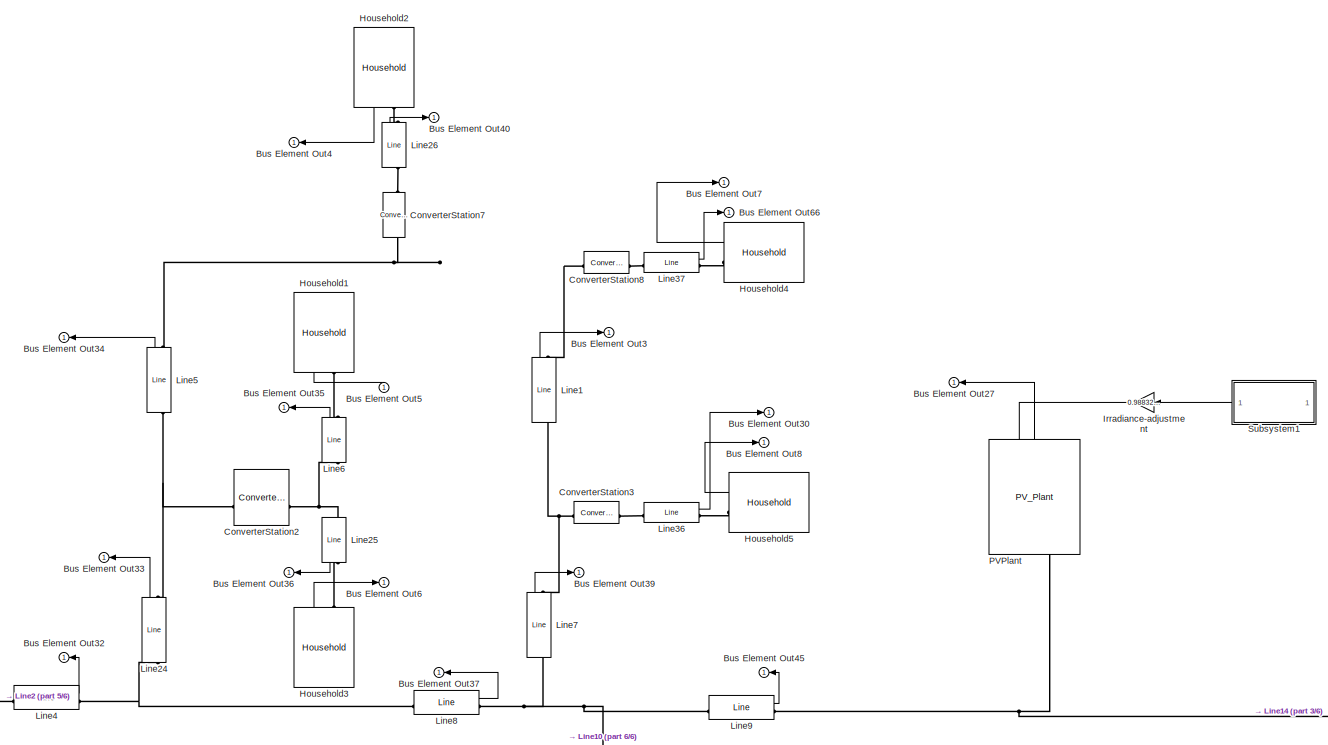
[diagram: root canvas - part 1/6, top center region]
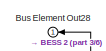
[diagram: root canvas - part 2/6, top right region]
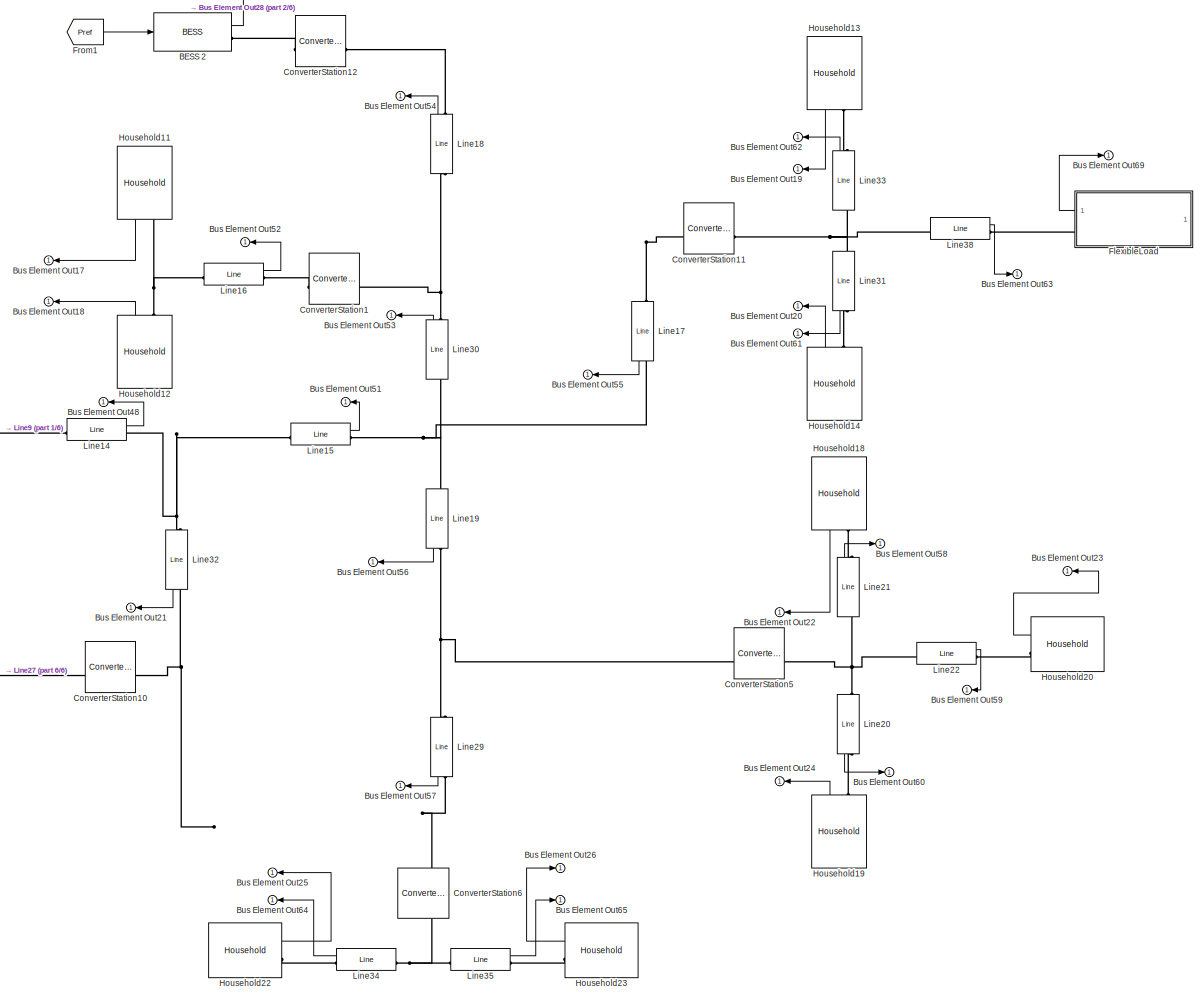
[diagram: root canvas - part 3/6, right side, full height]
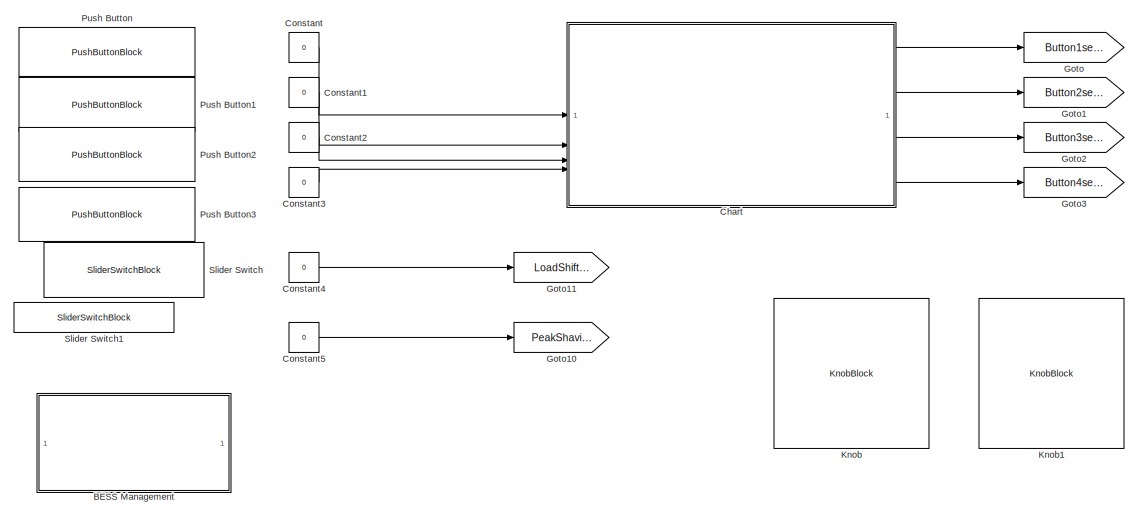
[diagram: root canvas - part 4/6, middle left region]
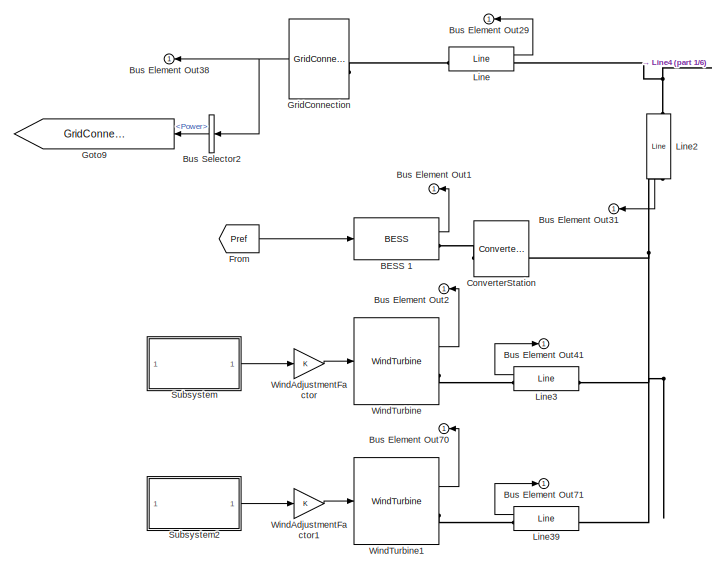
[diagram: root canvas - part 5/6, bottom center region]
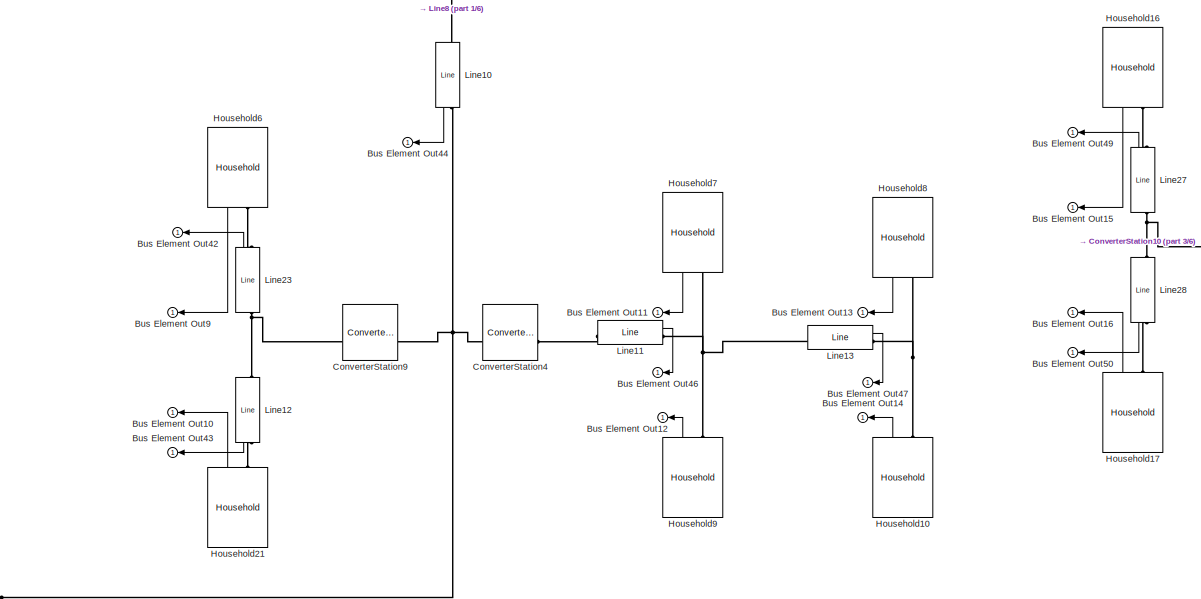
[diagram: root canvas - part 6/6, bottom center region]
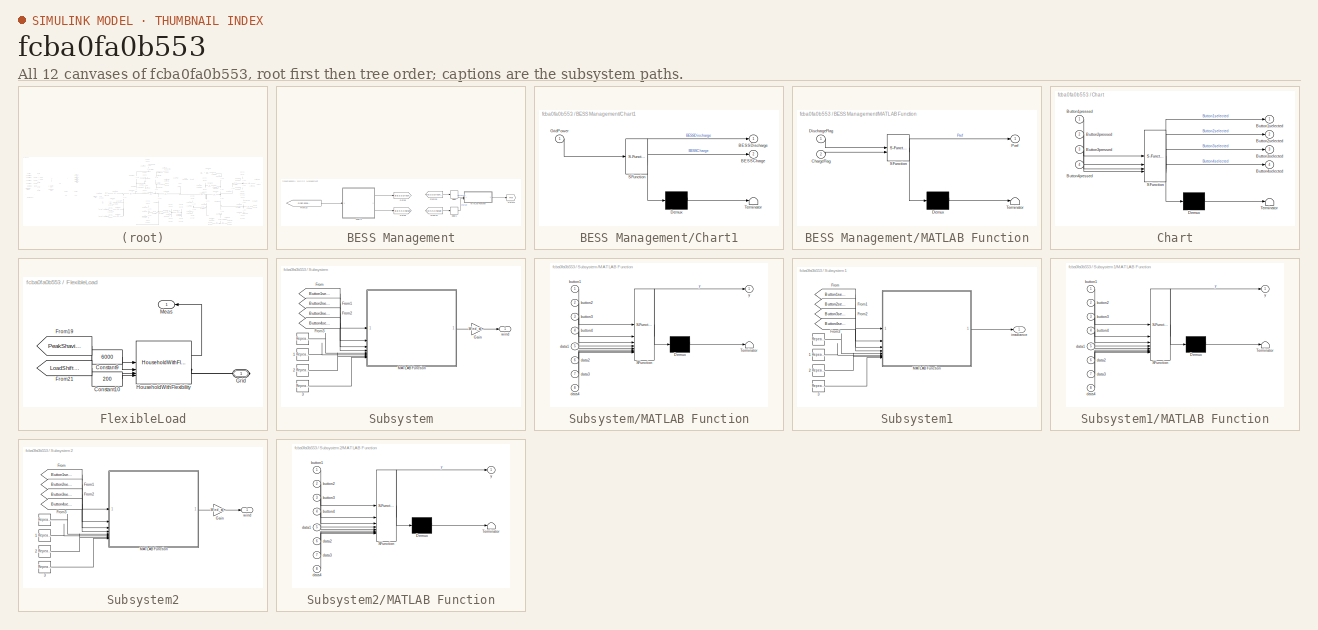
[diagram: thumbnail index - all 12 canvases of the model, root first then tree order]
MODEL slx_fcba0fa0b553
KIND model
CONFIG AbsTol = auto
CONFIG EnableMultiTasking = off
CONFIG FixedStep = auto
CONFIG MaxStep = auto
CONFIG MinStep = auto
CONFIG RelTol = 1e-3
CONFIG SampleTimeConstraint = Unconstrained
CONFIG SolverName = VariableStepAuto
CONFIG StartTime = 0.0
CONFIG StopTime = 48
BLOCK [Reference] BESS 1  REF=DC_GRIDSIM_LIB/BESS
  SourceBlock = DC_GRIDSIM_LIB/BESS
BLOCK [Reference] BESS 2  REF=DC_GRIDSIM_LIB/BESS
  SourceBlock = DC_GRIDSIM_LIB/BESS
BLOCK [SubSystem] BESS Management
BLOCK [SubSystem] BESS Management/Chart1
  ErrorFcn = Stateflow.Translate.translate
  PermitHierarchicalResolution = ExplicitOnly
  SFBlockType = Chart
  TreatAsAtomicUnit = on
BLOCK [Demux] BESS Management/Chart1/ Demux 
  Outputs = 1
BLOCK [S-Function] BESS Management/Chart1/ SFunction 
  EnableBusSupport = on
  FunctionName = sf_sfun
  Parameters = LowLoadP,PeakShP
  PortCounts = [1 3]
  SFcnIsStateOwnerBlock = off
  SFunctionDeploymentMode = off
  Tag = Stateflow S-Function 3
BLOCK [Terminator] BESS Management/Chart1/ Terminator 
BLOCK [Outport] BESS Management/Chart1/BESSCharge
  Port = 2
BLOCK [Outport] BESS Management/Chart1/BESSDischarge
BLOCK [Inport] BESS Management/Chart1/GridPower
BLOCK [Delay] BESS Management/Delay
  DelayLength = 1
  InputPortMap = u0
BLOCK [Delay] BESS Management/Delay1
  DelayLength = 1
  InputPortMap = u0
BLOCK [From] BESS Management/From18
  GotoTag = GridConnection_Power
  TagVisibility = global
BLOCK [From] BESS Management/From20
  GotoTag = BESSDischarge
  TagVisibility = global
BLOCK [From] BESS Management/From22
  GotoTag = BESSCharge
  TagVisibility = global
BLOCK [Goto] BESS Management/Goto12
  GotoTag = Pref
  TagVisibility = global
BLOCK [Goto] BESS Management/Goto6
  GotoTag = BESSDischarge
  TagVisibility = global
BLOCK [Goto] BESS Management/Goto8
  GotoTag = BESSCharge
  TagVisibility = global
BLOCK [SubSystem] BESS Management/MATLAB Function
  ErrorFcn = Stateflow.Translate.translate
  LibrarySourceBlock = simulink/User-Defined\nFunctions/MATLAB Function
  PermitHierarchicalResolution = ExplicitOnly
  SFBlockType = MATLAB Function
  TreatAsAtomicUnit = on
BLOCK [Demux] BESS Management/MATLAB Function/ Demux 
  Outputs = 1
BLOCK [S-Function] BESS Management/MATLAB Function/ SFunction 
  EnableBusSupport = on
  FunctionName = sf_sfun
  PortCounts = [2 2]
  SFcnIsStateOwnerBlock = off
  SFunctionDeploymentMode = off
  Tag = Stateflow S-Function 1
BLOCK [Terminator] BESS Management/MATLAB Function/ Terminator 
BLOCK [Inport] BESS Management/MATLAB Function/ChargeFlag
  Port = 2
BLOCK [Inport] BESS Management/MATLAB Function/DischargeFlag
BLOCK [Outport] BESS Management/MATLAB Function/Pref
BLOCK [Outport] Bus Element Out1
  NameLocation = top
BLOCK [Outport] Bus Element Out10
  NameLocation = top
BLOCK [Outport] Bus Element Out11
  NameLocation = top
BLOCK [Outport] Bus Element Out12
  NameLocation = top
BLOCK [Outport] Bus Element Out13
  NameLocation = top
BLOCK [Outport] Bus Element Out14
  NameLocation = top
BLOCK [Outport] Bus Element Out15
  NameLocation = top
BLOCK [Outport] Bus Element Out16
  NameLocation = top
BLOCK [Outport] Bus Element Out17
  NameLocation = top
BLOCK [Outport] Bus Element Out18
  NameLocation = top
BLOCK [Outport] Bus Element Out19
  NameLocation = top
BLOCK [Outport] Bus Element Out2
  NameLocation = top
BLOCK [Outport] Bus Element Out20
  NameLocation = top
BLOCK [Outport] Bus Element Out21
  NameLocation = top
BLOCK [Outport] Bus Element Out22
  NameLocation = top
BLOCK [Outport] Bus Element Out23
  NameLocation = top
BLOCK [Outport] Bus Element Out24
  NameLocation = top
BLOCK [Outport] Bus Element Out25
  NameLocation = top
BLOCK [Outport] Bus Element Out26
BLOCK [Outport] Bus Element Out27
  NameLocation = top
BLOCK [Outport] Bus Element Out28
  NameLocation = top
BLOCK [Outport] Bus Element Out29
  NameLocation = top
BLOCK [Outport] Bus Element Out3
BLOCK [Outport] Bus Element Out30
BLOCK [Outport] Bus Element Out31
  NameLocation = top
BLOCK [Outport] Bus Element Out32
  NameLocation = top
BLOCK [Outport] Bus Element Out33
  NameLocation = top
BLOCK [Outport] Bus Element Out34
  NameLocation = top
BLOCK [Outport] Bus Element Out35
  NameLocation = top
BLOCK [Outport] Bus Element Out36
  NameLocation = top
BLOCK [Outport] Bus Element Out37
  NameLocation = top
BLOCK [Outport] Bus Element Out38
  NameLocation = top
BLOCK [Outport] Bus Element Out39
BLOCK [Outport] Bus Element Out4
  NameLocation = top
BLOCK [Outport] Bus Element Out40
BLOCK [Outport] Bus Element Out41
BLOCK [Outport] Bus Element Out42
  NameLocation = top
BLOCK [Outport] Bus Element Out43
  NameLocation = top
BLOCK [Outport] Bus Element Out44
  NameLocation = top
BLOCK [Outport] Bus Element Out45
  NameLocation = top
BLOCK [Outport] Bus Element Out46
  NameLocation = top
BLOCK [Outport] Bus Element Out47
  NameLocation = top
BLOCK [Outport] Bus Element Out48
  NameLocation = top
BLOCK [Outport] Bus Element Out49
  NameLocation = top
BLOCK [Outport] Bus Element Out5
BLOCK [Outport] Bus Element Out50
  NameLocation = top
BLOCK [Outport] Bus Element Out51
  NameLocation = top
BLOCK [Outport] Bus Element Out52
  NameLocation = top
BLOCK [Outport] Bus Element Out53
  NameLocation = top
BLOCK [Outport] Bus Element Out54
  NameLocation = top
BLOCK [Outport] Bus Element Out55
  NameLocation = top
BLOCK [Outport] Bus Element Out56
  NameLocation = top
BLOCK [Outport] Bus Element Out57
  NameLocation = top
BLOCK [Outport] Bus Element Out58
BLOCK [Outport] Bus Element Out59
  NameLocation = top
BLOCK [Outport] Bus Element Out6
BLOCK [Outport] Bus Element Out60
BLOCK [Outport] Bus Element Out61
  NameLocation = top
BLOCK [Outport] Bus Element Out62
  NameLocation = top
BLOCK [Outport] Bus Element Out63
BLOCK [Outport] Bus Element Out64
  NameLocation = top
BLOCK [Outport] Bus Element Out65
BLOCK [Outport] Bus Element Out66
BLOCK [Outport] Bus Element Out69
BLOCK [Outport] Bus Element Out7
BLOCK [Outport] Bus Element Out70
  NameLocation = top
BLOCK [Outport] Bus Element Out71
BLOCK [Outport] Bus Element Out8
BLOCK [Outport] Bus Element Out9
  NameLocation = top
BLOCK [BusSelector] Bus Selector2
  NameLocation = top
  OutputSignals = Power
BLOCK [SubSystem] Chart
  ErrorFcn = Stateflow.Translate.translate
  PermitHierarchicalResolution = ExplicitOnly
  SFBlockType = Chart
  TreatAsAtomicUnit = on
BLOCK [Outport] Chart/ Button1selected
BLOCK [Outport] Chart/ Button2selected
  Port = 2
BLOCK [Outport] Chart/ Button3selected
  Port = 3
BLOCK [Outport] Chart/ Button4selected
  Port = 4
BLOCK [Demux] Chart/ Demux 
  Outputs = 1
BLOCK [S-Function] Chart/ SFunction 
  EnableBusSupport = on
  FunctionName = sf_sfun
  PortCounts = [4 5]
  SFcnIsStateOwnerBlock = off
  SFunctionDeploymentMode = off
  Tag = Stateflow S-Function 4
BLOCK [Terminator] Chart/ Terminator 
BLOCK [Inport] Chart/Button1pressed
BLOCK [Inport] Chart/Button2pressed
  Port = 2
BLOCK [Inport] Chart/Button3pressed
  Port = 3
BLOCK [Inport] Chart/Button4pressed
  Port = 4
BLOCK [Constant] Constant
  OutDataTypeStr = boolean
  Value = 0
BLOCK [Constant] Constant1
  OutDataTypeStr = boolean
  Value = 0
BLOCK [Constant] Constant2
  OutDataTypeStr = boolean
  Value = 0
BLOCK [Constant] Constant3
  OutDataTypeStr = boolean
  Value = 0
BLOCK [Constant] Constant4
  Value = 0
BLOCK [Constant] Constant5
  Value = 0
BLOCK [Reference] ConverterStation  REF=DC_GRIDSIM_LIB/ConverterStation
  SourceBlock = DC_GRIDSIM_LIB/ConverterStation
BLOCK [Reference] ConverterStation1  REF=DC_GRIDSIM_LIB/ConverterStation
  SourceBlock = DC_GRIDSIM_LIB/ConverterStation
BLOCK [Reference] ConverterStation10  REF=DC_GRIDSIM_LIB/ConverterStation
  SourceBlock = DC_GRIDSIM_LIB/ConverterStation
BLOCK [Reference] ConverterStation11  REF=DC_GRIDSIM_LIB/ConverterStation
  NameLocation = top
  SourceBlock = DC_GRIDSIM_LIB/ConverterStation
BLOCK [Reference] ConverterStation12  REF=DC_GRIDSIM_LIB/ConverterStation
  SourceBlock = DC_GRIDSIM_LIB/ConverterStation
BLOCK [Reference] ConverterStation2  REF=DC_GRIDSIM_LIB/ConverterStation
  NameLocation = top
  SourceBlock = DC_GRIDSIM_LIB/ConverterStation
BLOCK [Reference] ConverterStation3  REF=DC_GRIDSIM_LIB/ConverterStation
  NameLocation = top
  SourceBlock = DC_GRIDSIM_LIB/ConverterStation
BLOCK [Reference] ConverterStation4  REF=DC_GRIDSIM_LIB/ConverterStation
  NameLocation = top
  SourceBlock = DC_GRIDSIM_LIB/ConverterStation
BLOCK [Reference] ConverterStation5  REF=DC_GRIDSIM_LIB/ConverterStation
  NameLocation = top
  SourceBlock = DC_GRIDSIM_LIB/ConverterStation
BLOCK [Reference] ConverterStation6  REF=DC_GRIDSIM_LIB/ConverterStation
  NameLocation = right
  SourceBlock = DC_GRIDSIM_LIB/ConverterStation
BLOCK [Reference] ConverterStation7  REF=DC_GRIDSIM_LIB/ConverterStation
  NameLocation = left
  SourceBlock = DC_GRIDSIM_LIB/ConverterStation
BLOCK [Reference] ConverterStation8  REF=DC_GRIDSIM_LIB/ConverterStation
  NameLocation = top
  SourceBlock = DC_GRIDSIM_LIB/ConverterStation
BLOCK [Reference] ConverterStation9  REF=DC_GRIDSIM_LIB/ConverterStation
  SourceBlock = DC_GRIDSIM_LIB/ConverterStation
BLOCK [SubSystem] FlexibleLoad
  NameLocation = top
BLOCK [Constant] FlexibleLoad/Constant10
  Value = 200
BLOCK [Constant] FlexibleLoad/Constant9
  Value = 6000
BLOCK [From] FlexibleLoad/From19
  GotoTag = PeakShaving
  TagVisibility = global
BLOCK [From] FlexibleLoad/From21
  GotoTag = LoadShifting
  TagVisibility = global
BLOCK [PMIOPort] FlexibleLoad/Grid
  Side = Right
BLOCK [Reference] FlexibleLoad/HouseholdWithFlexibility  REF=DC_GRIDSIM_LIB/HouseholdWithFlexibility
  SourceBlock = DC_GRIDSIM_LIB/HouseholdWithFlexibility
BLOCK [Outport] FlexibleLoad/Meas
BLOCK [From] From
  GotoTag = Pref
  TagVisibility = global
BLOCK [From] From1
  GotoTag = Pref
  TagVisibility = global
BLOCK [Goto] Goto
  GotoTag = Button1selected
  TagVisibility = global
BLOCK [Goto] Goto1
  GotoTag = Button2selected
  TagVisibility = global
BLOCK [Goto] Goto10
  GotoTag = PeakShaving
  TagVisibility = global
BLOCK [Goto] Goto11
  GotoTag = LoadShifting
  TagVisibility = global
BLOCK [Goto] Goto2
  GotoTag = Button3selected
  TagVisibility = global
BLOCK [Goto] Goto3
  GotoTag = Button4selected
  TagVisibility = global
BLOCK [Goto] Goto9
  GotoTag = GridConnection_Power
  NameLocation = top
  TagVisibility = global
BLOCK [Reference] GridConnection  REF=DC_GRIDSIM_LIB/GridConnection
  SourceBlock = DC_GRIDSIM_LIB/GridConnection
BLOCK [Reference] Household1  REF=DC_GRIDSIM_LIB/Household
  NameLocation = left
  SourceBlock = DC_GRIDSIM_LIB/Household
BLOCK [Reference] Household10  REF=DC_GRIDSIM_LIB/Household
  NameLocation = right
  SourceBlock = DC_GRIDSIM_LIB/Household
BLOCK [Reference] Household11  REF=DC_GRIDSIM_LIB/Household
  NameLocation = left
  SourceBlock = DC_GRIDSIM_LIB/Household
BLOCK [Reference] Household12  REF=DC_GRIDSIM_LIB/Household
  NameLocation = right
  SourceBlock = DC_GRIDSIM_LIB/Household
BLOCK [Reference] Household13  REF=DC_GRIDSIM_LIB/Household
  NameLocation = left
  SourceBlock = DC_GRIDSIM_LIB/Household
BLOCK [Reference] Household14  REF=DC_GRIDSIM_LIB/Household
  NameLocation = right
  SourceBlock = DC_GRIDSIM_LIB/Household
BLOCK [Reference] Household16  REF=DC_GRIDSIM_LIB/Household
  NameLocation = left
  SourceBlock = DC_GRIDSIM_LIB/Household
BLOCK [Reference] Household17  REF=DC_GRIDSIM_LIB/Household
  NameLocation = right
  SourceBlock = DC_GRIDSIM_LIB/Household
BLOCK [Reference] Household18  REF=DC_GRIDSIM_LIB/Household
  NameLocation = left
  SourceBlock = DC_GRIDSIM_LIB/Household
BLOCK [Reference] Household19  REF=DC_GRIDSIM_LIB/Household
  NameLocation = right
  SourceBlock = DC_GRIDSIM_LIB/Household
BLOCK [Reference] Household2  REF=DC_GRIDSIM_LIB/Household
  NameLocation = left
  SourceBlock = DC_GRIDSIM_LIB/Household
BLOCK [Reference] Household20  REF=DC_GRIDSIM_LIB/Household
  NameLocation = top
  SourceBlock = DC_GRIDSIM_LIB/Household
BLOCK [Reference] Household21  REF=DC_GRIDSIM_LIB/Household
  NameLocation = right
  SourceBlock = DC_GRIDSIM_LIB/Household
BLOCK [Reference] Household22  REF=DC_GRIDSIM_LIB/Household
  SourceBlock = DC_GRIDSIM_LIB/Household
BLOCK [Reference] Household23  REF=DC_GRIDSIM_LIB/Household
  NameLocation = top
  SourceBlock = DC_GRIDSIM_LIB/Household
BLOCK [Reference] Household3  REF=DC_GRIDSIM_LIB/Household
  NameLocation = right
  SourceBlock = DC_GRIDSIM_LIB/Household
BLOCK [Reference] Household4  REF=DC_GRIDSIM_LIB/Household
  NameLocation = top
  SourceBlock = DC_GRIDSIM_LIB/Household
BLOCK [Reference] Household5  REF=DC_GRIDSIM_LIB/Household
  NameLocation = top
  SourceBlock = DC_GRIDSIM_LIB/Household
BLOCK [Reference] Household6  REF=DC_GRIDSIM_LIB/Household
  NameLocation = left
  SourceBlock = DC_GRIDSIM_LIB/Household
BLOCK [Reference] Household7  REF=DC_GRIDSIM_LIB/Household
  NameLocation = left
  SourceBlock = DC_GRIDSIM_LIB/Household
BLOCK [Reference] Household8  REF=DC_GRIDSIM_LIB/Household
  NameLocation = left
  SourceBlock = DC_GRIDSIM_LIB/Household
BLOCK [Reference] Household9  REF=DC_GRIDSIM_LIB/Household
  NameLocation = right
  SourceBlock = DC_GRIDSIM_LIB/Household
BLOCK [Gain] Irradiance-adjustment 
  Gain = 0.9883216814160616
  NameLocation = top
BLOCK [KnobBlock] Knob
  ScaleMax = 3
  ScaleMin = 0.9
  TickInterval = 0.1
BLOCK [KnobBlock] Knob1
  ScaleMax = 3
  ScaleMin = 0.9
  TickInterval = 0.1
BLOCK [Reference] Line  REF=DC_GRIDSIM_LIB/Line
  SourceBlock = DC_GRIDSIM_LIB/Line
BLOCK [Reference] Line1  REF=DC_GRIDSIM_LIB/Line
  NameLocation = right
  SourceBlock = DC_GRIDSIM_LIB/Line
BLOCK [Reference] Line10  REF=DC_GRIDSIM_LIB/Line
  NameLocation = left
  SourceBlock = DC_GRIDSIM_LIB/Line
BLOCK [Reference] Line11  REF=DC_GRIDSIM_LIB/Line
  SourceBlock = DC_GRIDSIM_LIB/Line
BLOCK [Reference] Line12  REF=DC_GRIDSIM_LIB/Line
  NameLocation = left
  SourceBlock = DC_GRIDSIM_LIB/Line
BLOCK [Reference] Line13  REF=DC_GRIDSIM_LIB/Line
  SourceBlock = DC_GRIDSIM_LIB/Line
BLOCK [Reference] Line14  REF=DC_GRIDSIM_LIB/Line
  SourceBlock = DC_GRIDSIM_LIB/Line
BLOCK [Reference] Line15  REF=DC_GRIDSIM_LIB/Line
  SourceBlock = DC_GRIDSIM_LIB/Line
BLOCK [Reference] Line16  REF=DC_GRIDSIM_LIB/Line
  SourceBlock = DC_GRIDSIM_LIB/Line
BLOCK [Reference] Line17  REF=DC_GRIDSIM_LIB/Line
  NameLocation = left
  SourceBlock = DC_GRIDSIM_LIB/Line
BLOCK [Reference] Line18  REF=DC_GRIDSIM_LIB/Line
  NameLocation = right
  SourceBlock = DC_GRIDSIM_LIB/Line
BLOCK [Reference] Line19  REF=DC_GRIDSIM_LIB/Line
  NameLocation = left
  SourceBlock = DC_GRIDSIM_LIB/Line
BLOCK [Reference] Line2  REF=DC_GRIDSIM_LIB/Line
  NameLocation = left
  SourceBlock = DC_GRIDSIM_LIB/Line
BLOCK [Reference] Line20  REF=DC_GRIDSIM_LIB/Line
  NameLocation = left
  SourceBlock = DC_GRIDSIM_LIB/Line
BLOCK [Reference] Line21  REF=DC_GRIDSIM_LIB/Line
  NameLocation = right
  SourceBlock = DC_GRIDSIM_LIB/Line
BLOCK [Reference] Line22  REF=DC_GRIDSIM_LIB/Line
  SourceBlock = DC_GRIDSIM_LIB/Line
BLOCK [Reference] Line23  REF=DC_GRIDSIM_LIB/Line
  NameLocation = right
  SourceBlock = DC_GRIDSIM_LIB/Line
BLOCK [Reference] Line24  REF=DC_GRIDSIM_LIB/Line
  NameLocation = right
  SourceBlock = DC_GRIDSIM_LIB/Line
BLOCK [Reference] Line25  REF=DC_GRIDSIM_LIB/Line
  NameLocation = left
  SourceBlock = DC_GRIDSIM_LIB/Line
BLOCK [Reference] Line26  REF=DC_GRIDSIM_LIB/Line
  NameLocation = right
  SourceBlock = DC_GRIDSIM_LIB/Line
BLOCK [Reference] Line27  REF=DC_GRIDSIM_LIB/Line
  NameLocation = right
  SourceBlock = DC_GRIDSIM_LIB/Line
BLOCK [Reference] Line28  REF=DC_GRIDSIM_LIB/Line
  NameLocation = left
  SourceBlock = DC_GRIDSIM_LIB/Line
BLOCK [Reference] Line29  REF=DC_GRIDSIM_LIB/Line
  NameLocation = left
  SourceBlock = DC_GRIDSIM_LIB/Line
BLOCK [Reference] Line3  REF=DC_GRIDSIM_LIB/Line
  NameLocation = top
  SourceBlock = DC_GRIDSIM_LIB/Line
BLOCK [Reference] Line30  REF=DC_GRIDSIM_LIB/Line
  NameLocation = right
  SourceBlock = DC_GRIDSIM_LIB/Line
BLOCK [Reference] Line31  REF=DC_GRIDSIM_LIB/Line
  NameLocation = left
  SourceBlock = DC_GRIDSIM_LIB/Line
BLOCK [Reference] Line32  REF=DC_GRIDSIM_LIB/Line
  NameLocation = left
  SourceBlock = DC_GRIDSIM_LIB/Line
BLOCK [Reference] Line33  REF=DC_GRIDSIM_LIB/Line
  NameLocation = right
  SourceBlock = DC_GRIDSIM_LIB/Line
BLOCK [Reference] Line34  REF=DC_GRIDSIM_LIB/Line
  NameLocation = top
  SourceBlock = DC_GRIDSIM_LIB/Line
BLOCK [Reference] Line35  REF=DC_GRIDSIM_LIB/Line
  SourceBlock = DC_GRIDSIM_LIB/Line
BLOCK [Reference] Line36  REF=DC_GRIDSIM_LIB/Line
  SourceBlock = DC_GRIDSIM_LIB/Line
BLOCK [Reference] Line37  REF=DC_GRIDSIM_LIB/Line
  SourceBlock = DC_GRIDSIM_LIB/Line
BLOCK [Reference] Line38  REF=DC_GRIDSIM_LIB/Line
  SourceBlock = DC_GRIDSIM_LIB/Line
BLOCK [Reference] Line39  REF=DC_GRIDSIM_LIB/Line
  NameLocation = top
  SourceBlock = DC_GRIDSIM_LIB/Line
BLOCK [Reference] Line4  REF=DC_GRIDSIM_LIB/Line
  SourceBlock = DC_GRIDSIM_LIB/Line
BLOCK [Reference] Line5  REF=DC_GRIDSIM_LIB/Line
  NameLocation = right
  SourceBlock = DC_GRIDSIM_LIB/Line
BLOCK [Reference] Line6  REF=DC_GRIDSIM_LIB/Line
  NameLocation = right
  SourceBlock = DC_GRIDSIM_LIB/Line
BLOCK [Reference] Line7  REF=DC_GRIDSIM_LIB/Line
  NameLocation = right
  SourceBlock = DC_GRIDSIM_LIB/Line
BLOCK [Reference] Line8  REF=DC_GRIDSIM_LIB/Line
  SourceBlock = DC_GRIDSIM_LIB/Line
BLOCK [Reference] Line9  REF=DC_GRIDSIM_LIB/Line
  SourceBlock = DC_GRIDSIM_LIB/Line
BLOCK [Reference] PVPlant  REF=DC_GRIDSIM_LIB/PV_Plant
  NameLocation = left
  SourceBlock = DC_GRIDSIM_LIB/PV_Plant
BLOCK [PushButtonBlock] Push Button
  ButtonText = Button_SpringAllday
  OffValue = 0.000000
BLOCK [PushButtonBlock] Push Button1
  ButtonText = Button_SummerAllday
  OffValue = 0.000000
BLOCK [PushButtonBlock] Push Button2
  ButtonText = Button_AutumnAllday
  OffValue = 0.000000
BLOCK [PushButtonBlock] Push Button3
  ButtonText = Button_WinterAllday
  OffValue = 0.000000
BLOCK [SliderSwitchBlock] Slider Switch
  LabelPosition = Hide
BLOCK [SliderSwitchBlock] Slider Switch1
  LabelPosition = Hide
BLOCK [SubSystem] Subsystem
BLOCK [Reference] Subsystem/    REF=simulink/Sources/Repeating
Sequence
Interpolated
  NameLocation = top
  SourceBlock = simulink/Sources/Repeating\nSequence\nInterpolated
  SourceType = Repeating Sequence Interpolated
BLOCK [Reference] Subsystem/  1  REF=simulink/Sources/Repeating
Sequence
Interpolated
  NameLocation = top
  SourceBlock = simulink/Sources/Repeating\nSequence\nInterpolated
  SourceType = Repeating Sequence Interpolated
BLOCK [Reference] Subsystem/  2  REF=simulink/Sources/Repeating
Sequence
Interpolated
  NameLocation = top
  SourceBlock = simulink/Sources/Repeating\nSequence\nInterpolated
  SourceType = Repeating Sequence Interpolated
BLOCK [Reference] Subsystem/  3  REF=simulink/Sources/Repeating
Sequence
Interpolated
  NameLocation = top
  SourceBlock = simulink/Sources/Repeating\nSequence\nInterpolated
  SourceType = Repeating Sequence Interpolated
BLOCK [From] Subsystem/From
  GotoTag = Button1selected
  TagVisibility = global
BLOCK [From] Subsystem/From1
  GotoTag = Button2selected
  TagVisibility = global
BLOCK [From] Subsystem/From2
  GotoTag = Button3selected
  TagVisibility = global
BLOCK [From] Subsystem/From3
  GotoTag = Button4selected
  TagVisibility = global
BLOCK [Gain] Subsystem/Gain
  Gain = Wind_scalefactor
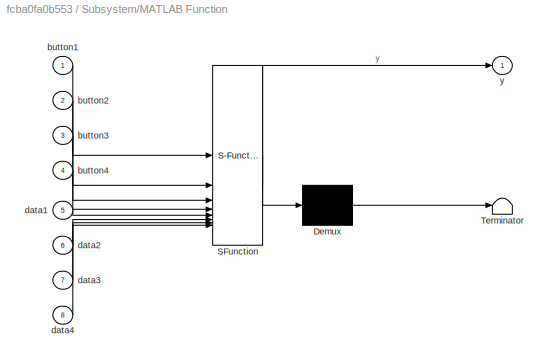
BLOCK [SubSystem] Subsystem/MATLAB Function
  ErrorFcn = Stateflow.Translate.translate
  LibrarySourceBlock = simulink/User-Defined\nFunctions/MATLAB Function
  PermitHierarchicalResolution = ExplicitOnly
  SFBlockType = MATLAB Function
  TreatAsAtomicUnit = on
BLOCK [Demux] Subsystem/MATLAB Function/ Demux 
  Outputs = 1
BLOCK [S-Function] Subsystem/MATLAB Function/ SFunction 
  EnableBusSupport = on
  FunctionName = sf_sfun
  PortCounts = [8 2]
  SFcnIsStateOwnerBlock = off
  SFunctionDeploymentMode = off
  Tag = Stateflow S-Function 2
BLOCK [Terminator] Subsystem/MATLAB Function/ Terminator 
BLOCK [Inport] Subsystem/MATLAB Function/button1
BLOCK [Inport] Subsystem/MATLAB Function/button2
  Port = 2
BLOCK [Inport] Subsystem/MATLAB Function/button3
  Port = 3
BLOCK [Inport] Subsystem/MATLAB Function/button4
  Port = 4
BLOCK [Inport] Subsystem/MATLAB Function/data1
  Port = 5
BLOCK [Inport] Subsystem/MATLAB Function/data2
  Port = 6
BLOCK [Inport] Subsystem/MATLAB Function/data3
  Port = 7
BLOCK [Inport] Subsystem/MATLAB Function/data4
  Port = 8
BLOCK [Outport] Subsystem/MATLAB Function/y
BLOCK [Outport] Subsystem/wind
BLOCK [SubSystem] Subsystem1
  NameLocation = top
BLOCK [Reference] Subsystem1/    REF=simulink/Sources/Repeating
Sequence
Interpolated
  NameLocation = top
  SourceBlock = simulink/Sources/Repeating\nSequence\nInterpolated
  SourceType = Repeating Sequence Interpolated
BLOCK [Reference] Subsystem1/  1  REF=simulink/Sources/Repeating
Sequence
Interpolated
  NameLocation = top
  SourceBlock = simulink/Sources/Repeating\nSequence\nInterpolated
  SourceType = Repeating Sequence Interpolated
BLOCK [Reference] Subsystem1/  2  REF=simulink/Sources/Repeating
Sequence
Interpolated
  NameLocation = top
  SourceBlock = simulink/Sources/Repeating\nSequence\nInterpolated
  SourceType = Repeating Sequence Interpolated
BLOCK [Reference] Subsystem1/  3  REF=simulink/Sources/Repeating
Sequence
Interpolated
  NameLocation = top
  SourceBlock = simulink/Sources/Repeating\nSequence\nInterpolated
  SourceType = Repeating Sequence Interpolated
BLOCK [From] Subsystem1/From
  GotoTag = Button1selected
  TagVisibility = global
BLOCK [From] Subsystem1/From1
  GotoTag = Button2selected
  TagVisibility = global
BLOCK [From] Subsystem1/From2
  GotoTag = Button3selected
  TagVisibility = global
BLOCK [From] Subsystem1/From3
  GotoTag = Button4selected
  TagVisibility = global
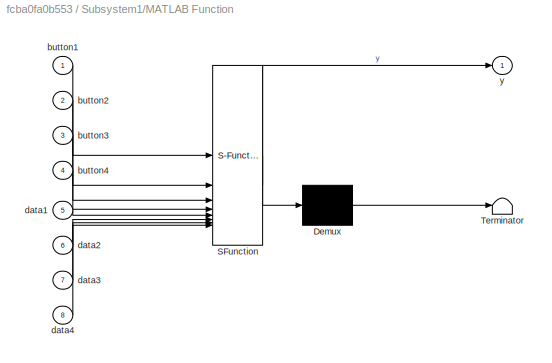
BLOCK [SubSystem] Subsystem1/MATLAB Function
  ErrorFcn = Stateflow.Translate.translate
  LibrarySourceBlock = simulink/User-Defined\nFunctions/MATLAB Function
  PermitHierarchicalResolution = ExplicitOnly
  SFBlockType = MATLAB Function
  TreatAsAtomicUnit = on
BLOCK [Demux] Subsystem1/MATLAB Function/ Demux 
  Outputs = 1
BLOCK [S-Function] Subsystem1/MATLAB Function/ SFunction 
  EnableBusSupport = on
  FunctionName = sf_sfun
  PortCounts = [8 2]
  SFcnIsStateOwnerBlock = off
  SFunctionDeploymentMode = off
  Tag = Stateflow S-Function 17
BLOCK [Terminator] Subsystem1/MATLAB Function/ Terminator 
BLOCK [Inport] Subsystem1/MATLAB Function/button1
BLOCK [Inport] Subsystem1/MATLAB Function/button2
  Port = 2
BLOCK [Inport] Subsystem1/MATLAB Function/button3
  Port = 3
BLOCK [Inport] Subsystem1/MATLAB Function/button4
  Port = 4
BLOCK [Inport] Subsystem1/MATLAB Function/data1
  Port = 5
BLOCK [Inport] Subsystem1/MATLAB Function/data2
  Port = 6
BLOCK [Inport] Subsystem1/MATLAB Function/data3
  Port = 7
BLOCK [Inport] Subsystem1/MATLAB Function/data4
  Port = 8
BLOCK [Outport] Subsystem1/MATLAB Function/y
BLOCK [Outport] Subsystem1/irradiance
BLOCK [SubSystem] Subsystem2
BLOCK [Reference] Subsystem2/    REF=simulink/Sources/Repeating
Sequence
Interpolated
  NameLocation = top
  SourceBlock = simulink/Sources/Repeating\nSequence\nInterpolated
  SourceType = Repeating Sequence Interpolated
BLOCK [Reference] Subsystem2/  1  REF=simulink/Sources/Repeating
Sequence
Interpolated
  NameLocation = top
  SourceBlock = simulink/Sources/Repeating\nSequence\nInterpolated
  SourceType = Repeating Sequence Interpolated
BLOCK [Reference] Subsystem2/  2  REF=simulink/Sources/Repeating
Sequence
Interpolated
  NameLocation = top
  SourceBlock = simulink/Sources/Repeating\nSequence\nInterpolated
  SourceType = Repeating Sequence Interpolated
BLOCK [Reference] Subsystem2/  3  REF=simulink/Sources/Repeating
Sequence
Interpolated
  NameLocation = top
  SourceBlock = simulink/Sources/Repeating\nSequence\nInterpolated
  SourceType = Repeating Sequence Interpolated
BLOCK [From] Subsystem2/From
  GotoTag = Button1selected
  TagVisibility = global
BLOCK [From] Subsystem2/From1
  GotoTag = Button2selected
  TagVisibility = global
BLOCK [From] Subsystem2/From2
  GotoTag = Button3selected
  TagVisibility = global
BLOCK [From] Subsystem2/From3
  GotoTag = Button4selected
  TagVisibility = global
BLOCK [Gain] Subsystem2/Gain
  Gain = Wind_scalefactor
BLOCK [SubSystem] Subsystem2/MATLAB Function
  ErrorFcn = Stateflow.Translate.translate
  LibrarySourceBlock = simulink/User-Defined\nFunctions/MATLAB Function
  PermitHierarchicalResolution = ExplicitOnly
  SFBlockType = MATLAB Function
  TreatAsAtomicUnit = on
BLOCK [Demux] Subsystem2/MATLAB Function/ Demux 
  Outputs = 1
BLOCK [S-Function] Subsystem2/MATLAB Function/ SFunction 
  EnableBusSupport = on
  FunctionName = sf_sfun
  PortCounts = [8 2]
  SFcnIsStateOwnerBlock = off
  SFunctionDeploymentMode = off
  Tag = Stateflow S-Function 9
BLOCK [Terminator] Subsystem2/MATLAB Function/ Terminator 
BLOCK [Inport] Subsystem2/MATLAB Function/button1
BLOCK [Inport] Subsystem2/MATLAB Function/button2
  Port = 2
BLOCK [Inport] Subsystem2/MATLAB Function/button3
  Port = 3
BLOCK [Inport] Subsystem2/MATLAB Function/button4
  Port = 4
BLOCK [Inport] Subsystem2/MATLAB Function/data1
  Port = 5
BLOCK [Inport] Subsystem2/MATLAB Function/data2
  Port = 6
BLOCK [Inport] Subsystem2/MATLAB Function/data3
  Port = 7
BLOCK [Inport] Subsystem2/MATLAB Function/data4
  Port = 8
BLOCK [Outport] Subsystem2/MATLAB Function/y
BLOCK [Outport] Subsystem2/wind
BLOCK [Gain] WindAdjustmentFactor
BLOCK [Gain] WindAdjustmentFactor1
BLOCK [Reference] WindTurbine  REF=DC_GRIDSIM_LIB/WindTurbine
  SourceBlock = DC_GRIDSIM_LIB/WindTurbine
  SourceType = SubSystem
BLOCK [Reference] WindTurbine1  REF=DC_GRIDSIM_LIB/WindTurbine
  SourceBlock = DC_GRIDSIM_LIB/WindTurbine
  SourceType = SubSystem
LINE BESS 1:1 -> Bus Element Out1:1
LINE BESS 2:1 -> Bus Element Out28:1
LINE BESS Management/Chart1:1 -> BESS Management/Goto6:1
LINE BESS Management/Chart1:2 -> BESS Management/Goto8:1
LINE BESS Management/Delay1:1 -> BESS Management/MATLAB Function:2
LINE BESS Management/Delay:1 -> BESS Management/MATLAB Function:1
LINE BESS Management/From18:1 -> BESS Management/Chart1:1
LINE BESS Management/From20:1 -> BESS Management/Delay:1
LINE BESS Management/From22:1 -> BESS Management/Delay1:1
LINE BESS Management/MATLAB Function:1 -> BESS Management/Goto12:1
LINE Bus Selector2:1 -> Goto9:1
LINE Chart:1 -> Goto:1
LINE Chart:2 -> Goto1:1
LINE Chart:3 -> Goto2:1
LINE Chart:4 -> Goto3:1
LINE Constant1:1 -> Chart:2
LINE Constant2:1 -> Chart:3
LINE Constant3:1 -> Chart:4
LINE Constant4:1 -> Goto11:1
LINE Constant5:1 -> Goto10:1
LINE Constant:1 -> Chart:1
LINE FlexibleLoad/Constant10:1 -> FlexibleLoad/HouseholdWithFlexibility:4
LINE FlexibleLoad/Constant9:1 -> FlexibleLoad/HouseholdWithFlexibility:2
LINE FlexibleLoad/From19:1 -> FlexibleLoad/HouseholdWithFlexibility:1
LINE FlexibleLoad/From21:1 -> FlexibleLoad/HouseholdWithFlexibility:3
LINE FlexibleLoad/HouseholdWithFlexibility:1 -> FlexibleLoad/Meas:1
LINE FlexibleLoad:1 -> Bus Element Out69:1
LINE From1:1 -> BESS 2:1
LINE From:1 -> BESS 1:1
NET GridConnection:1 -> Bus Element Out38:1, Bus Selector2:1
LINE Household10:1 -> Bus Element Out14:1
LINE Household11:1 -> Bus Element Out17:1
LINE Household12:1 -> Bus Element Out18:1
LINE Household13:1 -> Bus Element Out19:1
LINE Household14:1 -> Bus Element Out20:1
LINE Household16:1 -> Bus Element Out15:1
LINE Household17:1 -> Bus Element Out16:1
LINE Household18:1 -> Bus Element Out22:1
LINE Household19:1 -> Bus Element Out24:1
LINE Household1:1 -> Bus Element Out5:1
LINE Household20:1 -> Bus Element Out23:1
LINE Household21:1 -> Bus Element Out10:1
LINE Household22:1 -> Bus Element Out25:1
LINE Household23:1 -> Bus Element Out26:1
LINE Household2:1 -> Bus Element Out4:1
LINE Household3:1 -> Bus Element Out6:1
LINE Household4:1 -> Bus Element Out7:1
LINE Household5:1 -> Bus Element Out8:1
LINE Household6:1 -> Bus Element Out9:1
LINE Household7:1 -> Bus Element Out11:1
LINE Household8:1 -> Bus Element Out13:1
LINE Household9:1 -> Bus Element Out12:1
LINE Irradiance-adjustment :1 -> PVPlant:1
LINE Line10:1 -> Bus Element Out44:1
LINE Line11:1 -> Bus Element Out46:1
LINE Line12:1 -> Bus Element Out43:1
LINE Line13:1 -> Bus Element Out47:1
LINE Line14:1 -> Bus Element Out48:1
LINE Line15:1 -> Bus Element Out51:1
LINE Line16:1 -> Bus Element Out52:1
LINE Line17:1 -> Bus Element Out55:1
LINE Line18:1 -> Bus Element Out54:1
LINE Line19:1 -> Bus Element Out56:1
LINE Line1:1 -> Bus Element Out3:1
LINE Line20:1 -> Bus Element Out60:1
LINE Line21:1 -> Bus Element Out58:1
LINE Line22:1 -> Bus Element Out59:1
LINE Line23:1 -> Bus Element Out42:1
LINE Line24:1 -> Bus Element Out33:1
LINE Line25:1 -> Bus Element Out36:1
LINE Line26:1 -> Bus Element Out40:1
LINE Line27:1 -> Bus Element Out49:1
LINE Line28:1 -> Bus Element Out50:1
LINE Line29:1 -> Bus Element Out57:1
LINE Line2:1 -> Bus Element Out31:1
LINE Line30:1 -> Bus Element Out53:1
LINE Line31:1 -> Bus Element Out61:1
LINE Line32:1 -> Bus Element Out21:1
LINE Line33:1 -> Bus Element Out62:1
LINE Line34:1 -> Bus Element Out64:1
LINE Line35:1 -> Bus Element Out65:1
LINE Line36:1 -> Bus Element Out30:1
LINE Line37:1 -> Bus Element Out66:1
LINE Line38:1 -> Bus Element Out63:1
LINE Line39:1 -> Bus Element Out71:1
LINE Line3:1 -> Bus Element Out41:1
LINE Line4:1 -> Bus Element Out32:1
LINE Line5:1 -> Bus Element Out34:1
LINE Line6:1 -> Bus Element Out35:1
LINE Line7:1 -> Bus Element Out39:1
LINE Line8:1 -> Bus Element Out37:1
LINE Line9:1 -> Bus Element Out45:1
LINE Line:1 -> Bus Element Out29:1
LINE PVPlant:1 -> Bus Element Out27:1
LINE Subsystem/  1:1 -> Subsystem/MATLAB Function:6
LINE Subsystem/  2:1 -> Subsystem/MATLAB Function:7
LINE Subsystem/  3:1 -> Subsystem/MATLAB Function:8
LINE Subsystem/  :1 -> Subsystem/MATLAB Function:5
LINE Subsystem/From1:1 -> Subsystem/MATLAB Function:2
LINE Subsystem/From2:1 -> Subsystem/MATLAB Function:3
LINE Subsystem/From3:1 -> Subsystem/MATLAB Function:4
LINE Subsystem/From:1 -> Subsystem/MATLAB Function:1
LINE Subsystem/Gain:1 -> Subsystem/wind:1
LINE Subsystem/MATLAB Function:1 -> Subsystem/Gain:1
LINE Subsystem1/  1:1 -> Subsystem1/MATLAB Function:6
LINE Subsystem1/  2:1 -> Subsystem1/MATLAB Function:7
LINE Subsystem1/  3:1 -> Subsystem1/MATLAB Function:8
LINE Subsystem1/  :1 -> Subsystem1/MATLAB Function:5
LINE Subsystem1/From1:1 -> Subsystem1/MATLAB Function:2
LINE Subsystem1/From2:1 -> Subsystem1/MATLAB Function:3
LINE Subsystem1/From3:1 -> Subsystem1/MATLAB Function:4
LINE Subsystem1/From:1 -> Subsystem1/MATLAB Function:1
LINE Subsystem1/MATLAB Function:1 -> Subsystem1/irradiance:1
LINE Subsystem1:1 -> Irradiance-adjustment :1
LINE Subsystem2/  1:1 -> Subsystem2/MATLAB Function:6
LINE Subsystem2/  2:1 -> Subsystem2/MATLAB Function:7
LINE Subsystem2/  3:1 -> Subsystem2/MATLAB Function:8
LINE Subsystem2/  :1 -> Subsystem2/MATLAB Function:5
LINE Subsystem2/From1:1 -> Subsystem2/MATLAB Function:2
LINE Subsystem2/From2:1 -> Subsystem2/MATLAB Function:3
LINE Subsystem2/From3:1 -> Subsystem2/MATLAB Function:4
LINE Subsystem2/From:1 -> Subsystem2/MATLAB Function:1
LINE Subsystem2/Gain:1 -> Subsystem2/wind:1
LINE Subsystem2/MATLAB Function:1 -> Subsystem2/Gain:1
LINE Subsystem2:1 -> WindAdjustmentFactor1:1
LINE Subsystem:1 -> WindAdjustmentFactor:1
LINE WindAdjustmentFactor1:1 -> WindTurbine1:1
LINE WindAdjustmentFactor:1 -> WindTurbine:1
LINE WindTurbine1:1 -> Bus Element Out70:1
LINE WindTurbine:1 -> Bus Element Out2:1
PLINE BESS 1:RConn1 -- ConverterStation:LConn1
PLINE BESS 2:RConn1 -- ConverterStation12:LConn1
PNET net1: ConverterStation10:LConn1 -- Line27:LConn1 -- Line28:LConn1
PLINE ConverterStation10:RConn1 -- Line32:RConn1
PNET net2: ConverterStation11:LConn1 -- Line31:LConn1 -- Line33:LConn1 -- Line38:LConn1
PLINE ConverterStation11:RConn1 -- Line17:LConn1
PLINE ConverterStation12:RConn1 -- Line18:RConn1
PLINE ConverterStation1:LConn1 -- Line16:RConn1
PNET net3: ConverterStation1:RConn1 -- Line18:LConn1 -- Line30:RConn1
PNET net4: ConverterStation2:LConn1 -- Line25:LConn1 -- Line6:LConn1
PNET net5: ConverterStation2:RConn1 -- Line24:RConn1 -- Line5:LConn1
PLINE ConverterStation3:LConn1 -- Line36:LConn1
PNET net6: ConverterStation3:RConn1 -- Line1:LConn1 -- Line7:RConn1
PLINE ConverterStation4:LConn1 -- Line11:LConn1
PNET net7: ConverterStation4:RConn1 -- ConverterStation9:RConn1 -- Line10:RConn1
PNET net8: ConverterStation5:LConn1 -- Line20:LConn1 -- Line21:LConn1 -- Line22:LConn1
PNET net9: ConverterStation5:RConn1 -- Line19:RConn1 -- Line29:LConn1
PNET net10: ConverterStation6:LConn1 -- Line34:LConn1 -- Line35:LConn1
PLINE ConverterStation6:RConn1 -- Line29:RConn1
PLINE ConverterStation7:LConn1 -- Line26:LConn1
PLINE ConverterStation7:RConn1 -- Line5:RConn1
PLINE ConverterStation8:LConn1 -- Line37:LConn1
PLINE ConverterStation8:RConn1 -- Line1:RConn1
PNET net11: ConverterStation9:LConn1 -- Line12:LConn1 -- Line23:LConn1
PNET net12: ConverterStation:RConn1 -- Line2:RConn1 -- Line39:LConn1 -- Line3:LConn1
PLINE FlexibleLoad/Grid:RConn1 -- FlexibleLoad/HouseholdWithFlexibility:RConn1
PLINE FlexibleLoad:RConn1 -- Line38:RConn1
PLINE GridConnection:LConn1 -- Line:LConn1
PNET net13: Household10:RConn1 -- Household8:RConn1 -- Line13:RConn1
PNET net14: Household11:RConn1 -- Household12:RConn1 -- Line16:LConn1
PLINE Household13:RConn1 -- Line33:RConn1
PLINE Household14:RConn1 -- Line31:RConn1
PLINE Household16:RConn1 -- Line27:RConn1
PLINE Household17:RConn1 -- Line28:RConn1
PLINE Household18:RConn1 -- Line21:RConn1
PLINE Household19:RConn1 -- Line20:RConn1
PLINE Household1:RConn1 -- Line6:RConn1
PLINE Household20:RConn1 -- Line22:RConn1
PLINE Household21:RConn1 -- Line12:RConn1
PLINE Household22:RConn1 -- Line34:RConn1
PLINE Household23:RConn1 -- Line35:RConn1
PLINE Household2:RConn1 -- Line26:RConn1
PLINE Household3:RConn1 -- Line25:RConn1
PLINE Household4:RConn1 -- Line37:RConn1
PLINE Household5:RConn1 -- Line36:RConn1
PLINE Household6:RConn1 -- Line23:RConn1
PNET net15: Household7:RConn1 -- Household9:RConn1 -- Line11:RConn1 -- Line13:LConn1
PNET net16: Line10:LConn1 -- Line7:LConn1 -- Line8:RConn1 -- Line9:LConn1
PNET net17: Line14:LConn1 -- Line9:RConn1 -- PVPlant:LConn1
PNET net18: Line14:RConn1 -- Line15:LConn1 -- Line32:LConn1
PNET net19: Line15:RConn1 -- Line17:RConn1 -- Line19:LConn1 -- Line30:LConn1
PNET net20: Line24:LConn1 -- Line4:RConn1 -- Line8:LConn1
PNET net21: Line2:LConn1 -- Line4:LConn1 -- Line:RConn1
PLINE Line39:RConn1 -- WindTurbine1:RConn1
PLINE Line3:RConn1 -- WindTurbine:RConn1
note: NET lines group one-source signal fan-out (src -> all destinations, sorted); 1:1 wires keep LINE; PNET lines group multi-terminal physical nets as a canonical sorted terminal list (undirected conserving connections); 2-terminal nets keep the pairwise PLINE form
CHART Subsystem2/MATLAB Function states=1 transitions=1
  STATE_LABEL 'eML_blk_kernel()'
  STATE_LABEL 'SCRIPT:\nfunction y = fcn(button1, button2, button3, button4, data1,data2,data3, data4)\n    if button1\n        y = data1;\n    elseif button2\n        y =data2;\n    elseif button3\n        y = data3;\n    elseif button4\n        y = data4;\n    else \n        y = data1;\n    end\nend\n\n'  <repeated x3 — deduplicated; at blocks: MATLAB Function>
CHART Subsystem1/MATLAB Function states=1 transitions=1
  STATE_LABEL 'eML_blk_kernel()'
CHART BESS Management/MATLAB Function states=1 transitions=1
  STATE_LABEL 'eML_blk_kernel()'
  STATE_LABEL 'SCRIPT:\nfunction Pref = fcn(DischargeFlag, ChargeFlag)\n    if ChargeFlag == 1\n        Pref = 10000;\n    elseif DischargeFlag == 1\n         Pref = -5000;\n    elseif ChargeFlag == 0 && DischargeFlag == 0\n        Pref = 0;\n    else \n        Pref = 0;\n    end \n\n'
CHART Subsystem/MATLAB Function states=1 transitions=1
  STATE_LABEL 'eML_blk_kernel()'
CHART BESS Management/Chart1 states=6 transitions=6
  STATE_LABEL 'Initial_Mode\nentry:\nBESSDischarge=0;\nBESSCharge=0;\nexit:\nBESSDischarge=0;\nBESSCharge=0;'
  STATE_LABEL 'Mode1_NormalLoading\nentry:\nBESSDischarge=0;\nBESSCharge=0;\nexit:\nBESSDischarge=0;\nBESSCharge=0;'
  STATE_LABEL 'Mode3_BESSCharging\nentry:\nBESSDischarge=0;\nBESSCharge=1;\nexit:\nBESSDischarge=0;\nBESSCharge=0;'
  STATE_LABEL '-10'
  STATE_LABEL '4e4'
  STATE_LABEL 'Mode2_PeakShaving\nentry:\nBESSDischarge=1;\nBESSCharge=0;\nexit:\nBESSDischarge=0;\nBESSCharge=0;'
CHART Chart states=4 transitions=17
  STATE_LABEL 'Button1selected'
  STATE_LABEL 'Button2selected'
  STATE_LABEL 'Button3selected'
  STATE_LABEL 'Button4selected'
CHART  states=0 transitions=0
CHART  states=0 transitions=0
CHART  states=0 transitions=0
CHART  states=0 transitions=0
CHART  states=0 transitions=0
CHART  states=0 transitions=0
